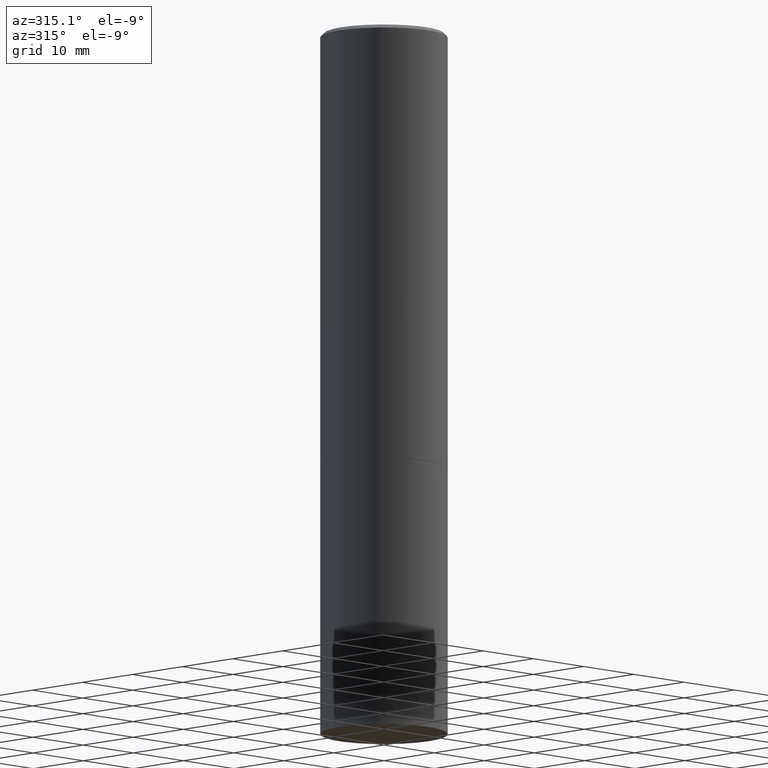
[diagram: clean part render]
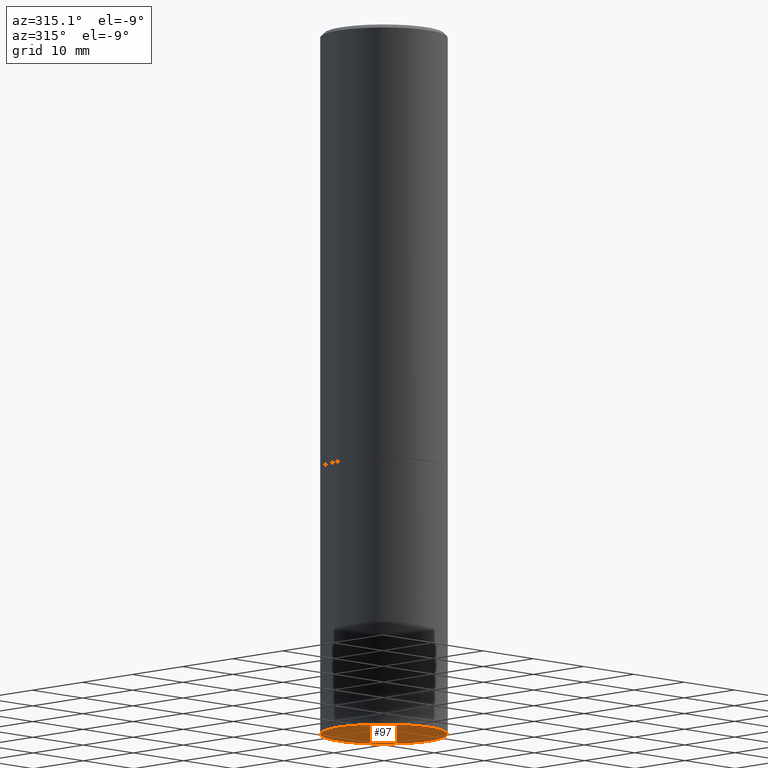
[diagram: same view with one face highlighted and labeled with its STEP entity id]
A machine part, auxiliary view. The second image highlights one B-rep face of the part: STEP entity #97.
In plain terms, the highlighted planar face has unit normal (0, -0, -1).
Its self-contained STEP definition (entity closure, byte-faithful):
#3 = VERTEX_POINT ( 'NONE', #178 ) ;
#25 = DIRECTION ( 'NONE',  ( 1.000000000000000000, -6.982962677686265922E-15, 0.000000000000000000 ) ) ;
#37 = CIRCLE ( 'NONE', #38, 0.3543499999999999983 ) ;
#38 = AXIS2_PLACEMENT_3D ( 'NONE', #213, #296, #264 ) ;
#41 = PLANE ( 'NONE',  #218 ) ;
#46 = AXIS2_PLACEMENT_3D ( 'NONE', #220, #308, #25 ) ;
#66 = EDGE_LOOP ( 'NONE', ( #91, #145 ) ) ;
#75 = CARTESIAN_POINT ( 'NONE',  ( 2.474412824838224146E-15, 0.3543499999999862871, -3.937000000000001165 ) ) ;
#76 = EDGE_CURVE ( 'NONE', #3, #112, #37, .T. ) ;
#91 = ORIENTED_EDGE ( 'NONE', *, *, #245, .F. ) ;
#97 = ADVANCED_FACE ( 'NONE', ( #217 ), #41, .T. ) ;
#112 = VERTEX_POINT ( 'NONE', #155 ) ;
#145 = ORIENTED_EDGE ( 'NONE', *, *, #76, .F. ) ;
#155 = CARTESIAN_POINT ( 'NONE',  ( 0.3543499999999999983, -1.622037485586359329E-14, -3.937000000000000277 ) ) ;
#178 = CARTESIAN_POINT ( 'NONE',  ( -0.3543499999999999983, -8.616351231337934377E-15, -3.937000000000000277 ) ) ;
#183 = DIRECTION ( 'NONE',  ( 2.438088387897960049E-29, -3.491481338843145188E-15, -1.000000000000000000 ) ) ;
#213 = CARTESIAN_POINT ( 'NONE',  ( 9.627810689950883669E-29, -1.374596203102546341E-14, -3.937000000000000277 ) ) ;
#217 = FACE_OUTER_BOUND ( 'NONE', #66, .T. ) ;
#218 = AXIS2_PLACEMENT_3D ( 'NONE', #75, #183, #353 ) ;
#220 = CARTESIAN_POINT ( 'NONE',  ( 9.627810689950883669E-29, -1.374596203102546341E-14, -3.937000000000000277 ) ) ;
#245 = EDGE_CURVE ( 'NONE', #112, #3, #339, .T. ) ;
#264 = DIRECTION ( 'NONE',  ( 1.000000000000000000, -6.982962677686265922E-15, 0.000000000000000000 ) ) ;
#296 = DIRECTION ( 'NONE',  ( -2.445468806185136597E-29, 3.491481338843145583E-15, 1.000000000000000000 ) ) ;
#308 = DIRECTION ( 'NONE',  ( -2.445468806185136597E-29, 3.491481338843145583E-15, 1.000000000000000000 ) ) ;
#339 = CIRCLE ( 'NONE', #46, 0.3543499999999999983 ) ;
#353 = DIRECTION ( 'NONE',  ( -1.000000000000000000, 6.982962677686265922E-15, -4.876176775795935793E-29 ) ) ;